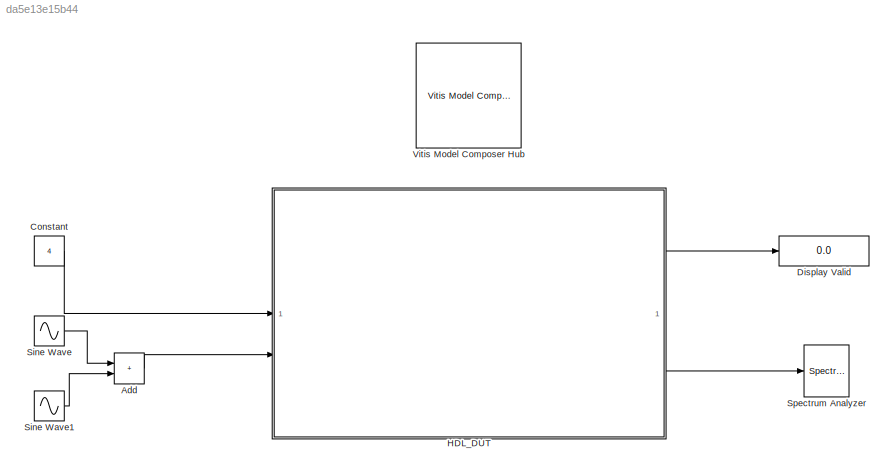
MODEL slx_da5e13e15b44
KIND model
CONFIG AbsTol = auto
CONFIG EnableMultiTasking = on
CONFIG FixedStep = auto
CONFIG MaxStep = auto
CONFIG MinStep = auto
CONFIG PreLoadFcn = Lab4_init
CONFIG RelTol = 1e-3
CONFIG SampleTimeConstraint = Unconstrained
CONFIG SolverName = ode45
CONFIG StartTime = 0.0
CONFIG StopTime = 30000/491.52e6
BLOCK [Sum] Add
  IconShape = rectangular
BLOCK [Constant] Constant
  Value = 4
BLOCK [Display] Display Valid
  Decimation = 1
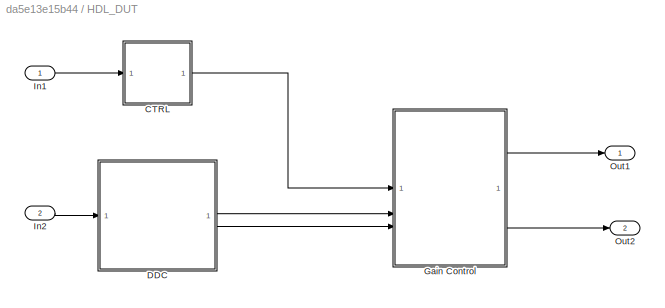
BLOCK [SubSystem] HDL_DUT
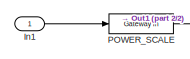
[diagram: HDL_DUT/CTRL - part 1/2, top left region]
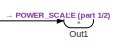
[diagram: HDL_DUT/CTRL - part 2/2, bottom right region]
BLOCK [SubSystem] HDL_DUT/CTRL
BLOCK [Inport] HDL_DUT/CTRL/In1
BLOCK [Outport] HDL_DUT/CTRL/Out1
BLOCK [Reference] HDL_DUT/CTRL/POWER_SCALE  REF=hdlBasic/Gateway In
  SourceBlock = hdlBasic/Gateway In
  SourceType = Gateway In Block
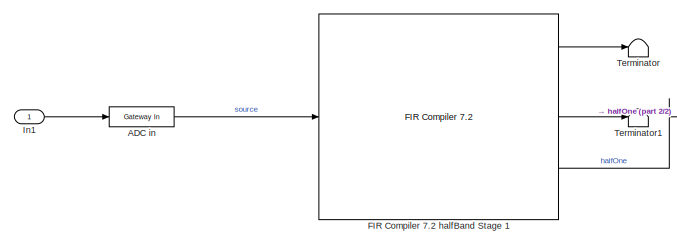
[diagram: HDL_DUT/DDC - part 1/2, middle left region]
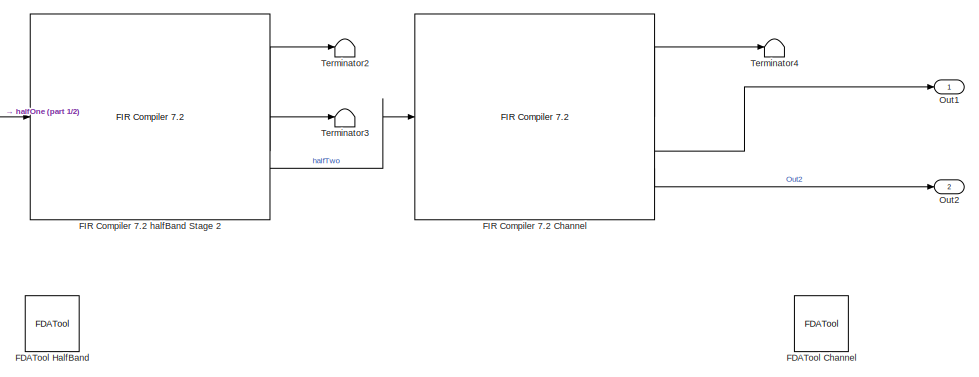
[diagram: HDL_DUT/DDC - part 2/2, right side, full height]
BLOCK [SubSystem] HDL_DUT/DDC
BLOCK [Reference] HDL_DUT/DDC/ADC in  REF=hdlBasic/Gateway In
  SourceBlock = hdlBasic/Gateway In
  SourceType = Gateway In Block
BLOCK [Reference] HDL_DUT/DDC/FDATool Channel  REF=hdlUtilities/FDATool
  SourceBlock = hdlUtilities/FDATool
  SourceType = Xilinx FDATool Interface Block
  UserDataPersistent = on
BLOCK [Reference] HDL_DUT/DDC/FDATool HalfBand  REF=hdlUtilities/FDATool
  SourceBlock = hdlUtilities/FDATool
  SourceType = Xilinx FDATool Interface Block
  UserDataPersistent = on
BLOCK [Reference] HDL_DUT/DDC/FIR Compiler 7.2 Channel  REF=hdlDSPIP/FIR Compiler 7.2 
  SourceBlock = hdlDSPIP/FIR Compiler 7.2
  SourceType = FIR Compiler 7.2 Block
BLOCK [Reference] HDL_DUT/DDC/FIR Compiler 7.2 halfBand Stage 1  REF=hdlDSPIP/FIR Compiler 7.2 
  SourceBlock = hdlDSPIP/FIR Compiler 7.2
  SourceType = FIR Compiler 7.2 Block
BLOCK [Reference] HDL_DUT/DDC/FIR Compiler 7.2 halfBand Stage 2  REF=hdlDSPIP/FIR Compiler 7.2 
  SourceBlock = hdlDSPIP/FIR Compiler 7.2
  SourceType = FIR Compiler 7.2 Block
BLOCK [Inport] HDL_DUT/DDC/In1
BLOCK [Outport] HDL_DUT/DDC/Out1
BLOCK [Outport] HDL_DUT/DDC/Out2
  Port = 2
BLOCK [Terminator] HDL_DUT/DDC/Terminator
BLOCK [Terminator] HDL_DUT/DDC/Terminator1
BLOCK [Terminator] HDL_DUT/DDC/Terminator2
BLOCK [Terminator] HDL_DUT/DDC/Terminator3
BLOCK [Terminator] HDL_DUT/DDC/Terminator4
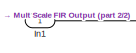
[diagram: HDL_DUT/Gain Control - part 1/2, top left region]
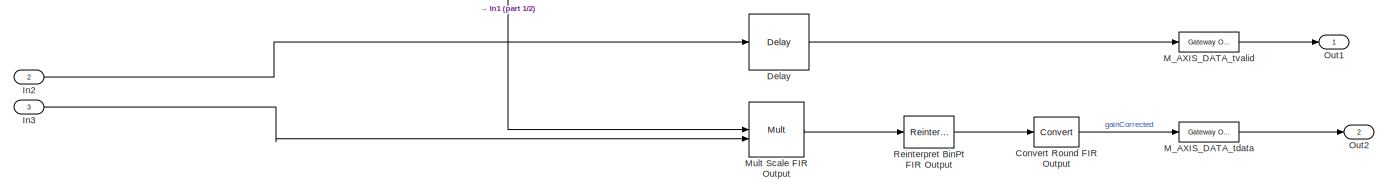
[diagram: HDL_DUT/Gain Control - part 2/2, bottom right region]
BLOCK [SubSystem] HDL_DUT/Gain Control
BLOCK [Reference] HDL_DUT/Gain Control/Convert Round FIR Output  REF=hdlBasic/Convert
  SourceBlock = hdlBasic/Convert
  SourceType = Type Converter Block
BLOCK [Reference] HDL_DUT/Gain Control/Delay  REF=hdlBasic/Delay
  SourceBlock = hdlBasic/Delay
  SourceType = Delay Block
BLOCK [Inport] HDL_DUT/Gain Control/In1
BLOCK [Inport] HDL_DUT/Gain Control/In2
  Port = 2
BLOCK [Inport] HDL_DUT/Gain Control/In3
  Port = 3
BLOCK [Reference] HDL_DUT/Gain Control/M_AXIS_DATA_tdata  REF=hdlBasic/Gateway Out
  SourceBlock = hdlBasic/Gateway Out
  SourceType = Gateway Out Block
BLOCK [Reference] HDL_DUT/Gain Control/M_AXIS_DATA_tvalid  REF=hdlBasic/Gateway Out
  SourceBlock = hdlBasic/Gateway Out
  SourceType = Gateway Out Block
BLOCK [Reference] HDL_DUT/Gain Control/Mult Scale FIR Output  REF=hdlBasic/Mult
  SourceBlock = hdlBasic/Mult
  SourceType = Multiplier Block
BLOCK [Outport] HDL_DUT/Gain Control/Out1
BLOCK [Outport] HDL_DUT/Gain Control/Out2
  Port = 2
BLOCK [Reference] HDL_DUT/Gain Control/Reinterpret BinPt FIR Output  REF=hdlBasic/Reinterpret
  SourceBlock = hdlBasic/Reinterpret
  SourceType = Type Reinterpreter Block
BLOCK [Inport] HDL_DUT/In1
BLOCK [Inport] HDL_DUT/In2
  Port = 2
BLOCK [Outport] HDL_DUT/Out1
BLOCK [Outport] HDL_DUT/Out2
  Port = 2
BLOCK [Sin] Sine Wave
  Frequency = 2*pi*20e6/periodScale
  SampleTime = 0
BLOCK [Sin] Sine Wave1
  Amplitude = 0.25
  Frequency = 2*pi*1e6/periodScale
  SampleTime = 0
BLOCK [SpectrumAnalyzer] Spectrum Analyzer
  AllowFFTLengthLessThanSamplesPerUpdate = on
  AveragingMethod = Exponential
  AxesScaling = Manual
  ChannelNames = [""]
  DefaultConfigurationName = spbscopes.SpectrumAnalyzerBlockCfg
  Method = Welch
  ScopeSpecificationString = spbscopes.SpectrumAnalyzerBlockCfg('CurrentConfiguration', extmgr.ConfigurationSet(extmgr.Configuration('Core','General UI',true,'FigureColor',[0.16        0.16        0.16]),extmgr.Configuration('Visuals','Spectrum',true,'Title','','YLabel','','MinYLim','-144.1149','MaxYLim','42.4377','Legend',false,'AxesProperties',struct('XGrid',{'on','on'},'YGrid',{'on','on'},'ZGrid',{'on','on'},'Color',{[0 0 ...<+2365ch>
  WasSavedAsWebScope = on
BLOCK [Reference] Vitis Model Composer Hub  REF=vmcUtilities/Vitis Model Composer Hub
  SourceBlock = vmcUtilities/Vitis Model Composer Hub
  SourceType = VMC Hub
  Tag = genX
  UserDataPersistent = on
LINE Add:1 -> HDL_DUT:2
LINE Constant:1 -> HDL_DUT:1
LINE HDL_DUT/CTRL/In1:1 -> HDL_DUT/CTRL/POWER_SCALE:1
LINE HDL_DUT/CTRL/POWER_SCALE:1 -> HDL_DUT/CTRL/Out1:1
LINE HDL_DUT/CTRL:1 -> HDL_DUT/Gain Control:1
LINE HDL_DUT/DDC/ADC in:1 -> HDL_DUT/DDC/FIR Compiler 7.2 halfBand Stage 1:1
LINE HDL_DUT/DDC/FIR Compiler 7.2 Channel:1 -> HDL_DUT/DDC/Terminator4:1
LINE HDL_DUT/DDC/FIR Compiler 7.2 Channel:2 -> HDL_DUT/DDC/Out1:1
LINE HDL_DUT/DDC/FIR Compiler 7.2 Channel:3 -> HDL_DUT/DDC/Out2:1
LINE HDL_DUT/DDC/FIR Compiler 7.2 halfBand Stage 1:1 -> HDL_DUT/DDC/Terminator:1
LINE HDL_DUT/DDC/FIR Compiler 7.2 halfBand Stage 1:2 -> HDL_DUT/DDC/Terminator1:1
LINE HDL_DUT/DDC/FIR Compiler 7.2 halfBand Stage 1:3 -> HDL_DUT/DDC/FIR Compiler 7.2 halfBand Stage 2:1
LINE HDL_DUT/DDC/FIR Compiler 7.2 halfBand Stage 2:1 -> HDL_DUT/DDC/Terminator2:1
LINE HDL_DUT/DDC/FIR Compiler 7.2 halfBand Stage 2:2 -> HDL_DUT/DDC/Terminator3:1
LINE HDL_DUT/DDC/FIR Compiler 7.2 halfBand Stage 2:3 -> HDL_DUT/DDC/FIR Compiler 7.2 Channel:1
LINE HDL_DUT/DDC/In1:1 -> HDL_DUT/DDC/ADC in:1
LINE HDL_DUT/DDC:1 -> HDL_DUT/Gain Control:2
LINE HDL_DUT/DDC:2 -> HDL_DUT/Gain Control:3
LINE HDL_DUT/Gain Control/Convert Round FIR Output:1 -> HDL_DUT/Gain Control/M_AXIS_DATA_tdata:1
LINE HDL_DUT/Gain Control/Delay:1 -> HDL_DUT/Gain Control/M_AXIS_DATA_tvalid:1
LINE HDL_DUT/Gain Control/In1:1 -> HDL_DUT/Gain Control/Mult Scale FIR Output:1
LINE HDL_DUT/Gain Control/In2:1 -> HDL_DUT/Gain Control/Delay:1
LINE HDL_DUT/Gain Control/In3:1 -> HDL_DUT/Gain Control/Mult Scale FIR Output:2
LINE HDL_DUT/Gain Control/M_AXIS_DATA_tdata:1 -> HDL_DUT/Gain Control/Out2:1
LINE HDL_DUT/Gain Control/M_AXIS_DATA_tvalid:1 -> HDL_DUT/Gain Control/Out1:1
LINE HDL_DUT/Gain Control/Mult Scale FIR Output:1 -> HDL_DUT/Gain Control/Reinterpret BinPt FIR Output:1
LINE HDL_DUT/Gain Control/Reinterpret BinPt FIR Output:1 -> HDL_DUT/Gain Control/Convert Round FIR Output:1
LINE HDL_DUT/Gain Control:1 -> HDL_DUT/Out1:1
LINE HDL_DUT/Gain Control:2 -> HDL_DUT/Out2:1
LINE HDL_DUT/In1:1 -> HDL_DUT/CTRL:1
LINE HDL_DUT/In2:1 -> HDL_DUT/DDC:1
LINE HDL_DUT:1 -> Display Valid:1
LINE HDL_DUT:2 -> Spectrum Analyzer:1
LINE Sine Wave1:1 -> Add:2
LINE Sine Wave:1 -> Add:1
